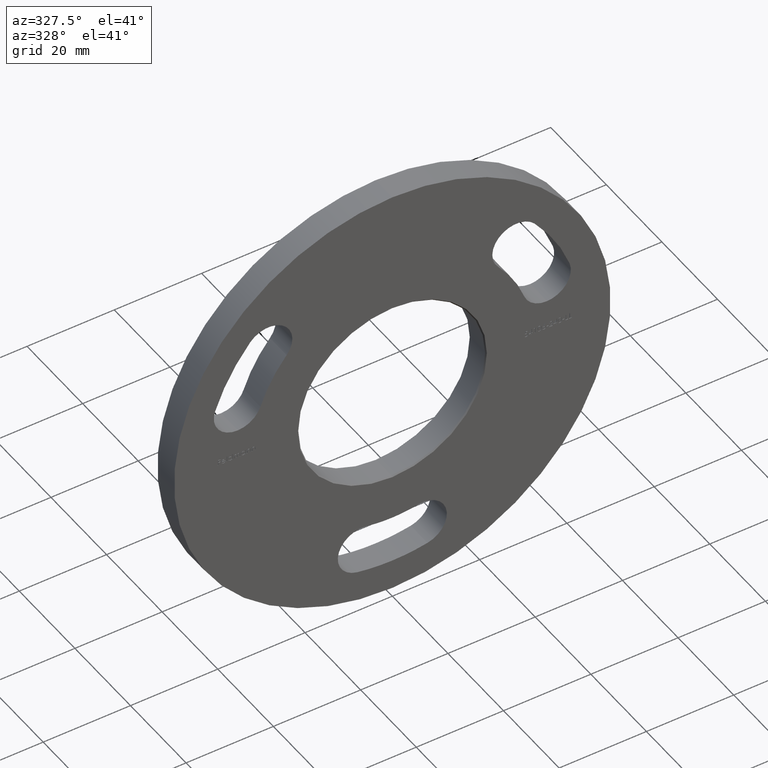
[diagram: clean part render]
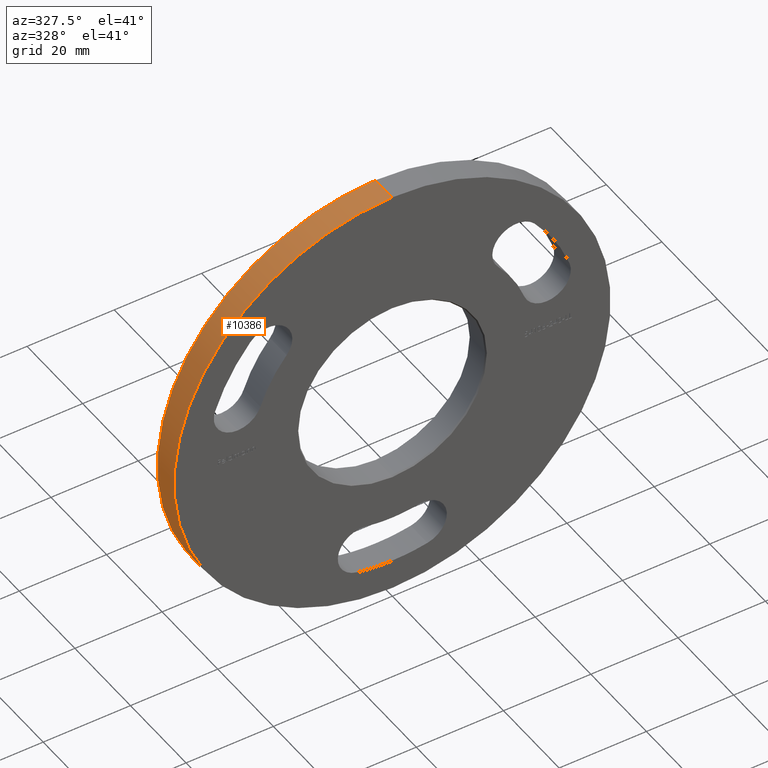
[diagram: same view with one face highlighted and labeled with its STEP entity id]
A machine part, auxiliary view. The second image highlights one B-rep face of the part: STEP entity #10386.
In plain terms, the highlighted cylindrical surface (partial cylindrical patch) has radius 50 mm, axis along (-0, -1, -0).
Its self-contained STEP definition (entity closure, byte-faithful):
#418 = EDGE_CURVE ( 'NONE', #2755, #1306, #6397, .T. ) ;
#487 = AXIS2_PLACEMENT_3D ( 'NONE', #12195, #7073, #949 ) ;
#801 = EDGE_CURVE ( 'NONE', #5491, #13018, #8945, .T. ) ;
#949 = DIRECTION ( 'NONE',  ( 0.000000000000000000, 0.000000000000000000, -1.000000000000000000 ) ) ;
#1302 = EDGE_LOOP ( 'NONE', ( #12153, #4030, #10700, #9220 ) ) ;
#1306 = VERTEX_POINT ( 'NONE', #8416 ) ;
#1596 = VECTOR ( 'NONE', #5514, 1000.000000000000000 ) ;
#1839 = CARTESIAN_POINT ( 'NONE',  ( 0.000000000000000000, 6.000000000000000000, -50.00000000000000000 ) ) ;
#2755 = VERTEX_POINT ( 'NONE', #12633 ) ;
#2865 = CARTESIAN_POINT ( 'NONE',  ( 0.000000000000000000, 0.000000000000000000, 0.000000000000000000 ) ) ;
#2911 = CIRCLE ( 'NONE', #2958, 50.00000000000000000 ) ;
#2958 = AXIS2_PLACEMENT_3D ( 'NONE', #2865, #3934, #5008 ) ;
#3426 = CARTESIAN_POINT ( 'NONE',  ( 0.000000000000000000, 0.000000000000000000, -50.00000000000000000 ) ) ;
#3934 = DIRECTION ( 'NONE',  ( 0.000000000000000000, 1.000000000000000000, 0.000000000000000000 ) ) ;
#4030 = ORIENTED_EDGE ( 'NONE', *, *, #10509, .F. ) ;
#4560 = CARTESIAN_POINT ( 'NONE',  ( 0.000000000000000000, 6.000000000000000000, -50.00000000000000000 ) ) ;
#4758 = AXIS2_PLACEMENT_3D ( 'NONE', #9534, #8552, #12608 ) ;
#4958 = DIRECTION ( 'NONE',  ( -0.000000000000000000, -1.000000000000000000, -0.000000000000000000 ) ) ;
#5008 = DIRECTION ( 'NONE',  ( 0.000000000000000000, 0.000000000000000000, 1.000000000000000000 ) ) ;
#5491 = VERTEX_POINT ( 'NONE', #4560 ) ;
#5514 = DIRECTION ( 'NONE',  ( -0.000000000000000000, -1.000000000000000000, -0.000000000000000000 ) ) ;
#6397 = LINE ( 'NONE', #11590, #1596 ) ;
#6600 = FACE_OUTER_BOUND ( 'NONE', #1302, .T. ) ;
#7073 = DIRECTION ( 'NONE',  ( -0.000000000000000000, -1.000000000000000000, -0.000000000000000000 ) ) ;
#8142 = VECTOR ( 'NONE', #4958, 1000.000000000000000 ) ;
#8416 = CARTESIAN_POINT ( 'NONE',  ( 6.123233995736766085E-15, 0.000000000000000000, 50.00000000000000000 ) ) ;
#8552 = DIRECTION ( 'NONE',  ( 0.000000000000000000, 1.000000000000000000, 0.000000000000000000 ) ) ;
#8945 = LINE ( 'NONE', #1839, #8142 ) ;
#9220 = ORIENTED_EDGE ( 'NONE', *, *, #10327, .T. ) ;
#9534 = CARTESIAN_POINT ( 'NONE',  ( 0.000000000000000000, 6.000000000000000000, 0.000000000000000000 ) ) ;
#10296 = CIRCLE ( 'NONE', #4758, 50.00000000000000000 ) ;
#10327 = EDGE_CURVE ( 'NONE', #13018, #1306, #2911, .T. ) ;
#10386 = ADVANCED_FACE ( 'NONE', ( #6600 ), #13025, .T. ) ;
#10509 = EDGE_CURVE ( 'NONE', #5491, #2755, #10296, .T. ) ;
#10700 = ORIENTED_EDGE ( 'NONE', *, *, #801, .T. ) ;
#11590 = CARTESIAN_POINT ( 'NONE',  ( 6.123233995736766085E-15, 6.000000000000000000, 50.00000000000000000 ) ) ;
#12153 = ORIENTED_EDGE ( 'NONE', *, *, #418, .F. ) ;
#12195 = CARTESIAN_POINT ( 'NONE',  ( 0.000000000000000000, 6.000000000000000000, 0.000000000000000000 ) ) ;
#12608 = DIRECTION ( 'NONE',  ( 0.000000000000000000, 0.000000000000000000, 1.000000000000000000 ) ) ;
#12633 = CARTESIAN_POINT ( 'NONE',  ( 6.123233995736766085E-15, 6.000000000000000000, 50.00000000000000000 ) ) ;
#13018 = VERTEX_POINT ( 'NONE', #3426 ) ;
#13025 = CYLINDRICAL_SURFACE ( 'NONE', #487, 50.00000000000000000 ) ;